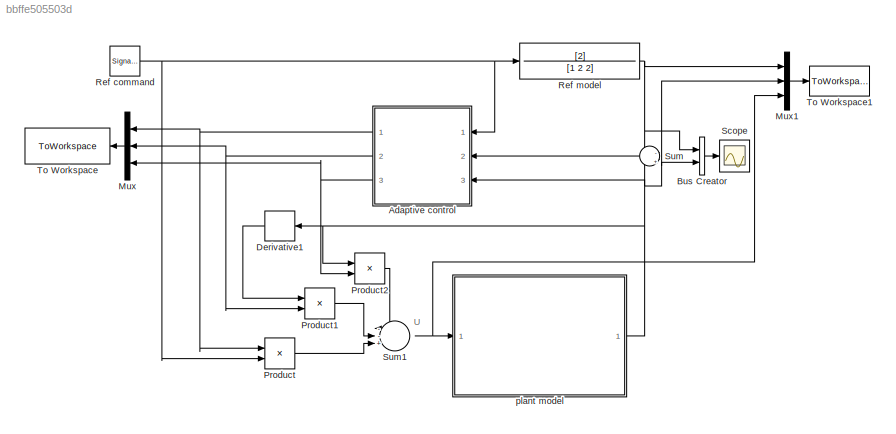
MODEL slx_bbffe505503d
KIND model
CONFIG AbsTol = auto
CONFIG EnableMultiTasking = on
CONFIG FixedStep = .01
CONFIG MaxStep = auto
CONFIG MinStep = auto
CONFIG RelTol = 1e-3
CONFIG SampleTimeConstraint = Unconstrained
CONFIG Solver = ode3
CONFIG SolverName = ode3
CONFIG StartTime = 0.0
CONFIG StopFcn = figure(1);\nsubplot(2,1,1)\nplot(out.time , out.signals.values(:,1:2)) ;\nxlabel('Time') ;\nylabel('Amp');\ntitle('Adaptive PID based on lyponove');\ngrid on\nlegend('Ym','Y');\n\nsubplot(2,1,2)\nplot(out.time , out.signals.values(:,3)) ;\nxlabel('Time') ;\nylabel('Amp');\ntitle('Adaptive PID based on lyponove - effort conrtol');\ngrid on\nlegend('U');\n\nfigure(2);\nplot(parametersPID.time , parametersPID.signals....<+140ch>
CONFIG StopTime = 2000
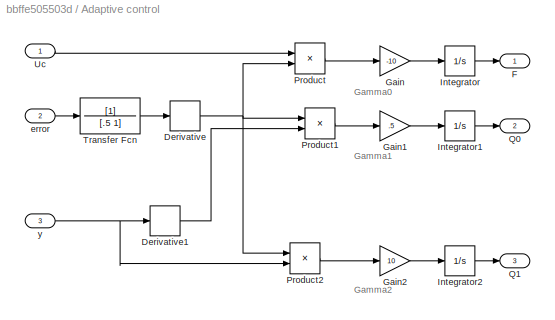
BLOCK [SubSystem] Adaptive control
  Ports = [3, 3]
  RequestExecContextInheritance = off
BLOCK [Inport] Adaptive control/ error
  IconDisplay = Port number
  Port = 2
BLOCK [Derivative] Adaptive control/Derivative
BLOCK [Derivative] Adaptive control/Derivative1
BLOCK [Outport] Adaptive control/F
  IconDisplay = Port number
BLOCK [Gain] Adaptive control/Gain
  Gain = -10
  OutDataTypeStr = Inherit: Inherit via internal rule
  ParamDataTypeStr = Inherit: Inherit via internal rule
  SaturateOnIntegerOverflow = off
BLOCK [Gain] Adaptive control/Gain1
  Gain = .5
  OutDataTypeStr = Inherit: Inherit via internal rule
  ParamDataTypeStr = Inherit: Inherit via internal rule
  SaturateOnIntegerOverflow = off
BLOCK [Gain] Adaptive control/Gain2
  Gain = 10
  OutDataTypeStr = Inherit: Inherit via internal rule
  ParamDataTypeStr = Inherit: Inherit via internal rule
  SaturateOnIntegerOverflow = off
BLOCK [Integrator] Adaptive control/Integrator
  Ports = [1, 1]
BLOCK [Integrator] Adaptive control/Integrator1
  Ports = [1, 1]
BLOCK [Integrator] Adaptive control/Integrator2
  Ports = [1, 1]
BLOCK [Product] Adaptive control/Product
  InputSameDT = off
  OutDataTypeStr = Inherit: Inherit via internal rule
  Ports = [2, 1]
  RndMeth = Floor
  SaturateOnIntegerOverflow = off
BLOCK [Product] Adaptive control/Product1
  InputSameDT = off
  OutDataTypeStr = Inherit: Inherit via internal rule
  Ports = [2, 1]
  RndMeth = Floor
  SaturateOnIntegerOverflow = off
BLOCK [Product] Adaptive control/Product2
  InputSameDT = off
  OutDataTypeStr = Inherit: Inherit via internal rule
  Ports = [2, 1]
  RndMeth = Floor
  SaturateOnIntegerOverflow = off
BLOCK [Outport] Adaptive control/Q0
  IconDisplay = Port number
  Port = 2
BLOCK [Outport] Adaptive control/Q1
  IconDisplay = Port number
  Port = 3
BLOCK [TransferFcn] Adaptive control/Transfer Fcn
  Denominator = [.5 1]
BLOCK [Inport] Adaptive control/Uc
  IconDisplay = Port number
BLOCK [Inport] Adaptive control/y
  IconDisplay = Port number
  Port = 3
BLOCK [BusCreator] Bus Creator
  DisplayOption = bar
  InheritFromInputs = on
  Inputs = 2
  Ports = [2, 1]
BLOCK [Derivative] Derivative1
BLOCK [Mux] Mux
  DisplayOption = bar
  Inputs = 3
  Ports = [3, 1]
BLOCK [Mux] Mux1
  DisplayOption = bar
  Inputs = 3
  Ports = [3, 1]
BLOCK [Product] Product
  InputSameDT = off
  OutDataTypeStr = Inherit: Inherit via internal rule
  Ports = [2, 1]
  RndMeth = Floor
  SaturateOnIntegerOverflow = off
BLOCK [Product] Product1
  InputSameDT = off
  OutDataTypeStr = Inherit: Inherit via internal rule
  Ports = [2, 1]
  RndMeth = Floor
  SaturateOnIntegerOverflow = off
BLOCK [Product] Product2
  InputSameDT = off
  OutDataTypeStr = Inherit: Inherit via internal rule
  Ports = [2, 1]
  RndMeth = Floor
  SaturateOnIntegerOverflow = off
BLOCK [SignalGenerator] Ref command 
  Frequency = .01/2
  Ports = [0, 1]
  WaveForm = square
BLOCK [TransferFcn] Ref model
  Denominator = [1 2 2]
  Numerator = [2]
BLOCK [Scope] Scope
  Floating = off
  NumInputPorts = 1
  Ports = [1]
  ScopeSpecificationString = Simulink.scopes.TimeScopeBlockCfg('CurrentConfiguration', extmgr.ConfigurationSet(extmgr.Configuration('Core','General UI',true),extmgr.Configuration('Core','Source UI',true),extmgr.Configuration('Sources','WiredSimulink',true,'DataLoggingSaveFormat','Array','DataLoggingDecimation','1','DataLoggingDecimateData',true),extmgr.Configuration('Visuals','Time Domain',true,'SerializedDisplays',{struct('M...<+1609ch>
BLOCK [Sum] Sum
  IconShape = round
  InputSameDT = off
  Inputs = -|+
  OutDataTypeStr = Inherit: Inherit via internal rule
  Ports = [2, 1]
  SaturateOnIntegerOverflow = off
BLOCK [Sum] Sum1
  IconShape = round
  InputSameDT = off
  Inputs = --+|
  OutDataTypeStr = Inherit: Inherit via internal rule
  Ports = [3, 1]
  SaturateOnIntegerOverflow = off
BLOCK [ToWorkspace] To Workspace
  FixptAsFi = on
  MaxDataPoints = inf
  Ports = [1]
  SampleTime = -1
  Save2DSignal = 3-D array (concatenate along third dimension)
  SaveFormat = Structure With Time
  VariableName = parametersPID
BLOCK [ToWorkspace] To Workspace1
  FixptAsFi = on
  MaxDataPoints = inf
  Ports = [1]
  SampleTime = -1
  Save2DSignal = 3-D array (concatenate along third dimension)
  SaveFormat = Structure With Time
  VariableName = out
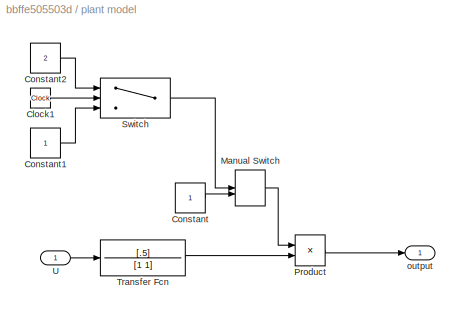
BLOCK [SubSystem] plant model
  Ports = [1, 1]
  RequestExecContextInheritance = off
BLOCK [Clock] plant model/Clock1
BLOCK [Constant] plant model/Constant
BLOCK [Constant] plant model/Constant1
BLOCK [Constant] plant model/Constant2
  Value = 2
BLOCK [ManualSwitch] plant model/Manual Switch
BLOCK [Product] plant model/Product
  InputSameDT = off
  OutDataTypeStr = Inherit: Inherit via internal rule
  Ports = [2, 1]
  RndMeth = Floor
  SaturateOnIntegerOverflow = off
BLOCK [Switch] plant model/Switch
  InputSameDT = off
  SaturateOnIntegerOverflow = off
  Threshold = 475
BLOCK [TransferFcn] plant model/Transfer Fcn
  Denominator = [1 1]
  Numerator = [.5]
BLOCK [Inport] plant model/U
  IconDisplay = Port number
BLOCK [Outport] plant model/output
  IconDisplay = Port number
ANNOTATION (root): U
ANNOTATION Adaptive control: Gamma0
ANNOTATION Adaptive control: Gamma1
ANNOTATION Adaptive control: Gamma2
LINE Adaptive control/ error:1 -> Adaptive control/Transfer Fcn:1
LINE Adaptive control/Derivative1:1 -> Adaptive control/Product1:2
NET Adaptive control/Derivative:1 -> Adaptive control/Product1:1, Adaptive control/Product2:1, Adaptive control/Product:2
LINE Adaptive control/Gain1:1 -> Adaptive control/Integrator1:1
LINE Adaptive control/Gain2:1 -> Adaptive control/Integrator2:1
LINE Adaptive control/Gain:1 -> Adaptive control/Integrator:1
LINE Adaptive control/Integrator1:1 -> Adaptive control/Q0:1
LINE Adaptive control/Integrator2:1 -> Adaptive control/Q1:1
LINE Adaptive control/Integrator:1 -> Adaptive control/F:1
LINE Adaptive control/Product1:1 -> Adaptive control/Gain1:1
LINE Adaptive control/Product2:1 -> Adaptive control/Gain2:1
LINE Adaptive control/Product:1 -> Adaptive control/Gain:1
LINE Adaptive control/Transfer Fcn:1 -> Adaptive control/Derivative:1
LINE Adaptive control/Uc:1 -> Adaptive control/Product:1
NET Adaptive control/y:1 -> Adaptive control/Derivative1:1, Adaptive control/Product2:2
NET Adaptive control:1 -> Mux:1, Product:1
NET Adaptive control:2 -> Mux:2, Product1:2
NET Adaptive control:3 -> Mux:3, Product2:2
LINE Bus Creator:1 -> Scope:1
LINE Derivative1:1 -> Product1:1
LINE Mux1:1 -> To Workspace1:1
LINE Mux:1 -> To Workspace:1
LINE Product1:1 -> Sum1:2
LINE Product2:1 -> Sum1:1
LINE Product:1 -> Sum1:3
NET Ref command :1 -> Adaptive control:1, Product:2, Ref model:1
NET Ref model:1 -> Bus Creator:1, Mux1:1, Sum:1
NET Sum1:1 -> Mux1:3, plant model:1
LINE Sum:1 -> Adaptive control:2
LINE plant model/Clock1:1 -> plant model/Switch:2
LINE plant model/Constant1:1 -> plant model/Switch:3
LINE plant model/Constant2:1 -> plant model/Switch:1
LINE plant model/Constant:1 -> plant model/Manual Switch:2
LINE plant model/Manual Switch:1 -> plant model/Product:1
LINE plant model/Product:1 -> plant model/output:1
LINE plant model/Switch:1 -> plant model/Manual Switch:1
LINE plant model/Transfer Fcn:1 -> plant model/Product:2
LINE plant model/U:1 -> plant model/Transfer Fcn:1
NET plant model:1 -> Adaptive control:3, Bus Creator:2, Derivative1:1, Mux1:2, Product2:1, Sum:2
note: NET lines group one-source signal fan-out (src -> all destinations, sorted); 1:1 wires keep LINE
